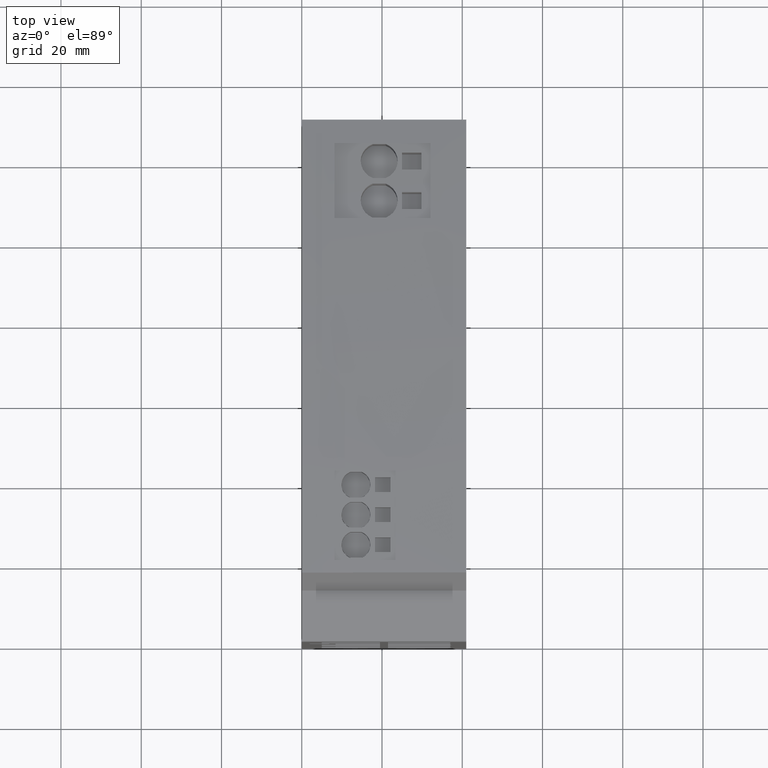
[diagram: clean part render]
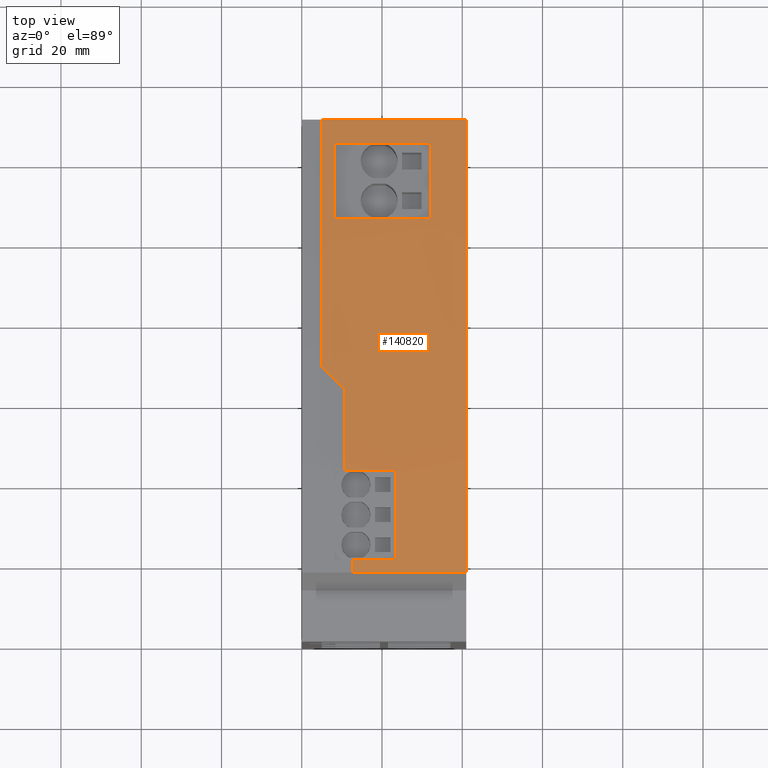
[diagram: same view with one face highlighted and labeled with its STEP entity id]
A machine part, top view. The second image highlights one B-rep face of the part: STEP entity #140820.
In plain terms, the highlighted cylindrical surface (partial cylindrical patch) has radius 660 mm, axis along (1, 0, 0).
Its self-contained STEP definition (entity closure, byte-faithful):
#138670=CARTESIAN_POINT('',(115.,16.9999999999953,-46.5));
#138680=VERTEX_POINT('',#138670);
#138710=CARTESIAN_POINT('',(-544.999999999994,17.0000000000008,-46.5));
#138720=DIRECTION('',(0.,0.,-1.));
#138730=DIRECTION('',(-1.,0.,0.));
#138740=AXIS2_PLACEMENT_3D('',#138710,#138720,#138730);
#138750=CIRCLE('',#138740,659.999999999994);
#138760=CARTESIAN_POINT('',(105.254565535683,130.,-46.5));
#138770=VERTEX_POINT('',#138760);
#138780=EDGE_CURVE('',#138770,#138680,#138750,.T.);
#139160=CARTESIAN_POINT('',(115.,16.9999999999953,-18.2988464920431));
#139170=VERTEX_POINT('',#139160);
#139200=CARTESIAN_POINT('',(115.,16.999999999995,-10.0465578274128));
#139210=DIRECTION('',(0.,0.,-1.));
#139220=VECTOR('',#139210,1.);
#139230=LINE('',#139200,#139220);
#139240=EDGE_CURVE('',#139170,#138680,#139230,.T.);
#139530=CARTESIAN_POINT('',(105.254565535683,130.,-10.0465578274128));
#139540=DIRECTION('',(0.,0.,-1.));
#139550=VECTOR('',#139540,1.);
#139560=LINE('',#139530,#139550);
#139570=CARTESIAN_POINT('',(105.254565535683,130.,-10.5465578276221));
#139580=VERTEX_POINT('',#139570);
#139590=EDGE_CURVE('',#139580,#138770,#139560,.T.);
#139770=CARTESIAN_POINT('',(-544.999999999994,17.0000000000008,
-10.0465578274128));
#139780=DIRECTION('',(0.,0.,-1.));
#139790=DIRECTION('',(-1.,0.,0.));
#139800=AXIS2_PLACEMENT_3D('',#139770,#139780,#139790);
#139810=CYLINDRICAL_SURFACE('',#139800,659.999999999994);
#139820=CARTESIAN_POINT('',(109.061027741702,105.341224745121,
-10.0465578274128));
#139830=DIRECTION('',(0.,0.,-1.));
#139840=VECTOR('',#139830,1.);
#139850=LINE('',#139820,#139840);
#139860=CARTESIAN_POINT('',(109.061027741702,105.34122474512,-13.7));
#139870=VERTEX_POINT('',#139860);
#139880=CARTESIAN_POINT('',(109.061027741702,105.341224745121,-37.6));
#139890=VERTEX_POINT('',#139880);
#139900=EDGE_CURVE('',#139870,#139890,#139850,.T.);
#139910=ORIENTED_EDGE('',*,*,#139900,.F.);
#139920=CARTESIAN_POINT('',(-544.999999999994,17.0000000000008,-37.6));
#139930=DIRECTION('',(0.,0.,-1.));
#139940=DIRECTION('',(-1.,0.,0.));
#139950=AXIS2_PLACEMENT_3D('',#139920,#139930,#139940);
#139960=CIRCLE('',#139950,659.999999999994);
#139970=CARTESIAN_POINT('',(106.244845576732,124.145467051752,-37.6));
#139980=VERTEX_POINT('',#139970);
#139990=EDGE_CURVE('',#139980,#139890,#139960,.T.);
#140000=ORIENTED_EDGE('',*,*,#139990,.T.);
#140010=CARTESIAN_POINT('',(106.244845576732,124.145467051752,
-10.0465578274128));
#140020=DIRECTION('',(0.,0.,-1.));
#140030=VECTOR('',#140020,1.);
#140040=LINE('',#140010,#140030);
#140050=CARTESIAN_POINT('',(106.244845576732,124.145467051752,-13.7));
#140060=VERTEX_POINT('',#140050);
#140070=EDGE_CURVE('',#140060,#139980,#140040,.T.);
#140080=ORIENTED_EDGE('',*,*,#140070,.T.);
#140090=CARTESIAN_POINT('',(-544.999999999994,17.0000000000008,-13.7));
#140100=DIRECTION('',(0.,0.,-1.));
#140110=DIRECTION('',(-1.,0.,0.));
#140120=AXIS2_PLACEMENT_3D('',#140090,#140100,#140110);
#140130=CIRCLE('',#140120,659.999999999994);
#140140=EDGE_CURVE('',#140060,#139870,#140130,.T.);
#140150=ORIENTED_EDGE('',*,*,#140140,.F.);
#140160=EDGE_LOOP('',(#140150,#140080,#140000,#139910));
#140170=FACE_BOUND('',#140160,.T.);
#140180=CARTESIAN_POINT('',(114.9929431318,20.0520511503668,
-10.0465578274128));
#140190=DIRECTION('',(0.,0.,-1.));
#140200=VECTOR('',#140190,1.);
#140210=LINE('',#140180,#140200);
#140220=CARTESIAN_POINT('',(114.9929431318,20.0520511503668,
-18.2988464920431));
#140230=VERTEX_POINT('',#140220);
#140240=CARTESIAN_POINT('',(114.9929431318,20.0520511503668,-28.8));
#140250=VERTEX_POINT('',#140240);
#140260=EDGE_CURVE('',#140230,#140250,#140210,.T.);
#140270=ORIENTED_EDGE('',*,*,#140260,.F.);
#140280=CARTESIAN_POINT('',(-544.999999999994,17.0000000000008,-28.8));
#140290=DIRECTION('',(0.,0.,-1.));
#140300=DIRECTION('',(-1.,0.,0.));
#140310=AXIS2_PLACEMENT_3D('',#140280,#140290,#140300);
#140320=CIRCLE('',#140310,659.999999999994);
#140330=CARTESIAN_POINT('',(114.511227535371,42.3956837826399,-28.8));
#140340=VERTEX_POINT('',#140330);
#140350=EDGE_CURVE('',#140340,#140250,#140320,.T.);
#140360=ORIENTED_EDGE('',*,*,#140350,.T.);
#140370=CARTESIAN_POINT('',(114.511227535371,42.3956837826399,
-10.0465578274128));
#140380=DIRECTION('',(0.,0.,-1.));
#140390=VECTOR('',#140380,1.);
#140400=LINE('',#140370,#140390);
#140410=CARTESIAN_POINT('',(114.511227535371,42.3956837826398,
-16.1500000000091));
#140420=VERTEX_POINT('',#140410);
#140430=EDGE_CURVE('',#140420,#140340,#140400,.T.);
#140440=ORIENTED_EDGE('',*,*,#140430,.T.);
#140450=CARTESIAN_POINT('',(-544.999999999994,17.0000000000008,
-16.1500000000091));
#140460=DIRECTION('',(0.,0.,-1.));
#140470=DIRECTION('',(-1.,0.,0.));
#140480=AXIS2_PLACEMENT_3D('',#140450,#140460,#140470);
#140490=CIRCLE('',#140480,659.999999999994);
#140500=CARTESIAN_POINT('',(113.414774329106,62.716353147991,
-16.1500000000091));
#140510=VERTEX_POINT('',#140500);
#140520=EDGE_CURVE('',#140510,#140420,#140490,.T.);
#140530=ORIENTED_EDGE('',*,*,#140520,.T.);
#140540=CARTESIAN_POINT('',(-544.999999999994,17.0000000000008,
-61.8663531479997));
#140550=DIRECTION('',(0.,-0.707106781186547,0.707106781186548));
#140560=DIRECTION('',(0.,0.707106781186548,0.707106781186547));
#140570=AXIS2_PLACEMENT_3D('',#140540,#140550,#140560);
#140580=ELLIPSE('',#140570,933.380951166233,659.999999999994);
#140590=CARTESIAN_POINT('',(113.001731462976,68.3197953203785,
-10.5465578276221));
#140600=VERTEX_POINT('',#140590);
#140610=EDGE_CURVE('',#140510,#140600,#140580,.T.);
#140620=ORIENTED_EDGE('',*,*,#140610,.F.);
#140630=CARTESIAN_POINT('',(-544.999999999994,17.0000000000008,
-10.5465578276221));
#140640=DIRECTION('',(0.,0.,-1.));
#140650=DIRECTION('',(-1.,0.,0.));
#140660=AXIS2_PLACEMENT_3D('',#140630,#140640,#140650);
#140670=CIRCLE('',#140660,659.999999999994);
#140680=EDGE_CURVE('',#139580,#140600,#140670,.T.);
#140690=ORIENTED_EDGE('',*,*,#140680,.T.);
#140700=ORIENTED_EDGE('',*,*,#139590,.F.);
#140710=ORIENTED_EDGE('',*,*,#138780,.F.);
#140720=ORIENTED_EDGE('',*,*,#139240,.T.);
#140730=CARTESIAN_POINT('',(-544.999999999994,17.0000000000008,
-18.2988464920431));
#140740=DIRECTION('',(0.,0.,-1.));
#140750=DIRECTION('',(-1.,0.,0.));
#140760=AXIS2_PLACEMENT_3D('',#140730,#140740,#140750);
#140770=CIRCLE('',#140760,659.999999999994);
#140780=EDGE_CURVE('',#140230,#139170,#140770,.T.);
#140790=ORIENTED_EDGE('',*,*,#140780,.T.);
#140800=EDGE_LOOP('',(#140790,#140720,#140710,#140700,#140690,#140620,
#140530,#140440,#140360,#140270));
#140810=FACE_OUTER_BOUND('',#140800,.T.);
#140820=ADVANCED_FACE('',(#140170,#140810),#139810,.T.);